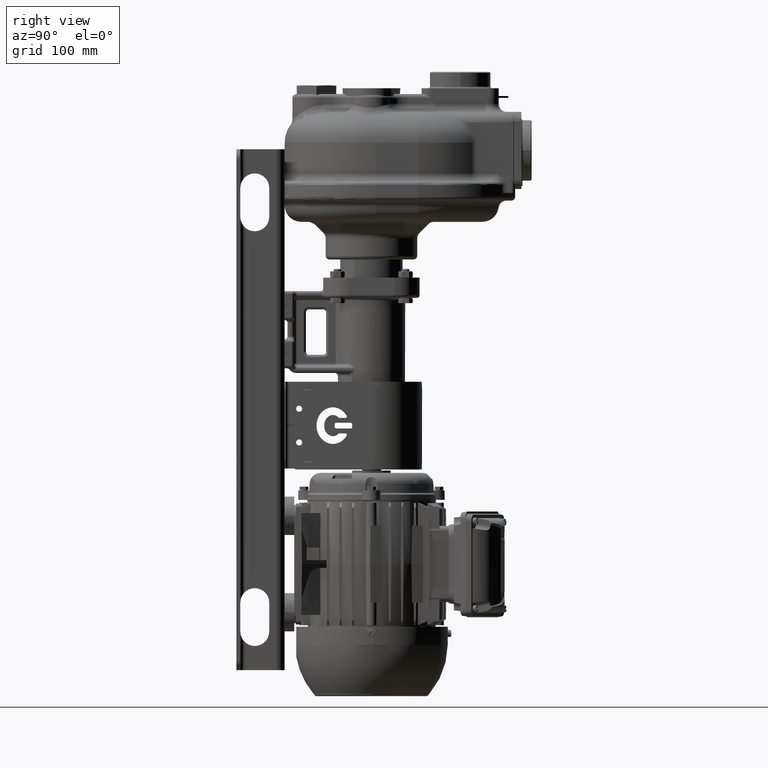
[diagram: clean part render]
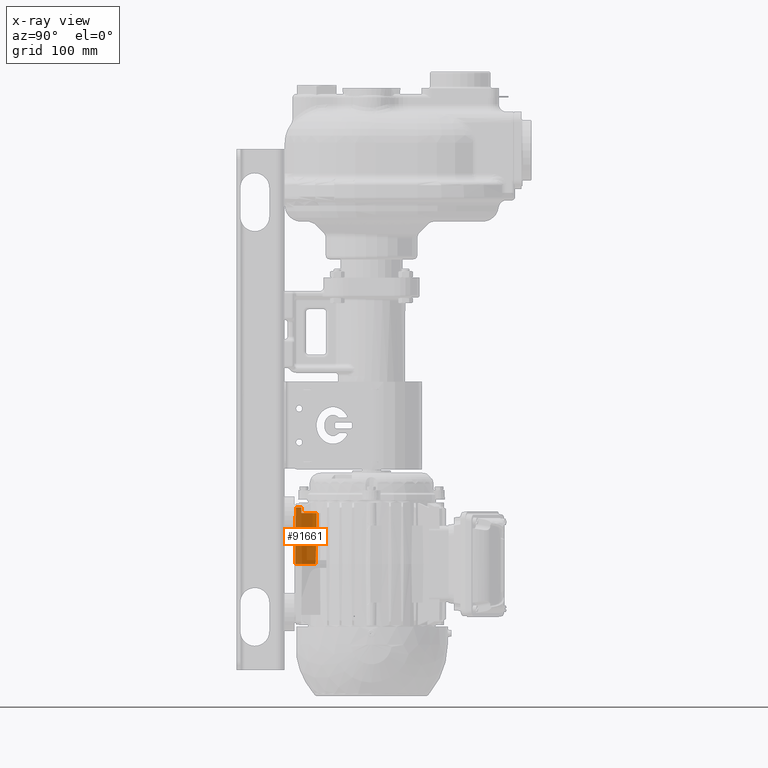
[diagram: x-ray — body ghosted, one internal face saturated and labeled with its STEP entity id]
A machine part, right view, then the same camera in x-ray: the body is ghosted and one INTERNAL B-rep face — a face not visible from any outside direction — is saturated and labeled: STEP entity #91661.
In plain terms, the highlighted planar face has unit normal (0.9062, -0.4226, 0.0131).
Its self-contained STEP definition (entity closure, byte-faithful):
#32853=DIRECTION('',(-2.054221377859E-2,-1.308683348949E-2,9.997033321152E-1));
#32854=VECTOR('',#32853,5.856713800294E0);
#32855=CARTESIAN_POINT('',(-4.185346207683E1,1.730946467377E1,-2.1525E2));
#32856=LINE('',#32855,#32854);
#32857=CARTESIAN_POINT('',(-3.418172766224E1,3.212760643602E1,-2.68E2));
#32858=CARTESIAN_POINT('',(-3.420493954262E1,3.226156837217E1,
-2.620681730401E2));
#32859=CARTESIAN_POINT('',(-3.425103163318E1,3.252874293049E1,
-2.502516723078E2));
#32860=CARTESIAN_POINT('',(-3.431917583508E1,3.292723136650E1,
-2.326691281677E2));
#32861=CARTESIAN_POINT('',(-3.436395113625E1,3.319140290537E1,
-2.210407414498E2));
#32862=CARTESIAN_POINT('',(-3.438617543049E1,3.332311256426E1,-2.1525E2));
#32864=DIRECTION('',(4.226182617407E-1,9.063077870367E-1,0.E0));
#32865=VECTOR('',#32864,2.331173442203E1);
#32866=CARTESIAN_POINT('',(-4.403369234185E1,1.1E1,-2.68E2));
#32867=LINE('',#32866,#32865);
#32868=DIRECTION('',(1.037364964637E-2,-8.726065943124E-3,-9.999081173619E-1));
#32869=VECTOR('',#32868,5.861036157604E1);
#32870=CARTESIAN_POINT('',(-4.464169569848E1,1.151143788006E1,
-2.093950236986E2));
#32871=LINE('',#32870,#32869);
#33139=CARTESIAN_POINT('',(-4.197377194375E1,1.723281883547E1,
-2.093950236986E2));
#33152=DIRECTION('',(4.226182617407E-1,9.063077870367E-1,0.E0));
#33153=VECTOR('',#33152,6.312845412174E0);
#33154=CARTESIAN_POINT('',(-4.464169569848E1,1.151143788006E1,
-2.093950236986E2));
#33155=LINE('',#33154,#33153);
#33816=DIRECTION('',(4.226182617407E-1,9.063077870367E-1,0.E0));
#33817=VECTOR('',#33816,1.766910548440E1);
#33818=CARTESIAN_POINT('',(-4.185346207683E1,1.730946467377E1,-2.1525E2));
#33819=LINE('',#33818,#33817);
#55876=VERTEX_POINT('',#32857);
#55877=VERTEX_POINT('',#32862);
#55892=VERTEX_POINT('',#33139);
#55894=CARTESIAN_POINT('',(-4.185346207683E1,1.730946467377E1,-2.1525E2));
#55896=VERTEX_POINT('',#55894);
#55910=CARTESIAN_POINT('',(-4.464169569848E1,1.151143788006E1,
-2.093950236986E2));
#55911=VERTEX_POINT('',#55910);
#55912=CARTESIAN_POINT('',(-4.403369234185E1,1.1E1,-2.68E2));
#55913=VERTEX_POINT('',#55912);
#91643=CARTESIAN_POINT('',(-4.543261531631E1,8.E0,-2.68E2));
#91644=DIRECTION('',(9.062301414498E-1,-4.225820550089E-1,1.308959557134E-2));
#91645=DIRECTION('',(-4.226182617407E-1,-9.063077870367E-1,0.E0));
#91646=AXIS2_PLACEMENT_3D('',#91643,#91644,#91645);
#91647=PLANE('',#91646);
#91649=ORIENTED_EDGE('',*,*,#91648,.F.);
#91651=ORIENTED_EDGE('',*,*,#91650,.T.);
#91652=ORIENTED_EDGE('',*,*,#70171,.F.);
#91654=ORIENTED_EDGE('',*,*,#91653,.F.);
#91656=ORIENTED_EDGE('',*,*,#91655,.F.);
#91658=ORIENTED_EDGE('',*,*,#91657,.T.);
#91659=EDGE_LOOP('',(#91649,#91651,#91652,#91654,#91656,#91658));
#91660=FACE_OUTER_BOUND('',#91659,.F.);
#91661=ADVANCED_FACE('',(#91660),#91647,.T.);
#32863=B_SPLINE_CURVE_WITH_KNOTS('',3,(#32857,#32858,#32859,#32860,#32861,
#32862),.UNSPECIFIED.,.F.,.F.,(4,1,1,4),(0.E0,3.333333333333E-1,
6.666666666667E-1,1.E0),.UNSPECIFIED.);
#70171=EDGE_CURVE('',#55876,#55877,#32863,.T.);
#91648=EDGE_CURVE('',#55896,#55892,#32856,.T.);
#91650=EDGE_CURVE('',#55896,#55877,#33819,.T.);
#91653=EDGE_CURVE('',#55913,#55876,#32867,.T.);
#91655=EDGE_CURVE('',#55911,#55913,#32871,.T.);
#91657=EDGE_CURVE('',#55911,#55892,#33155,.T.);